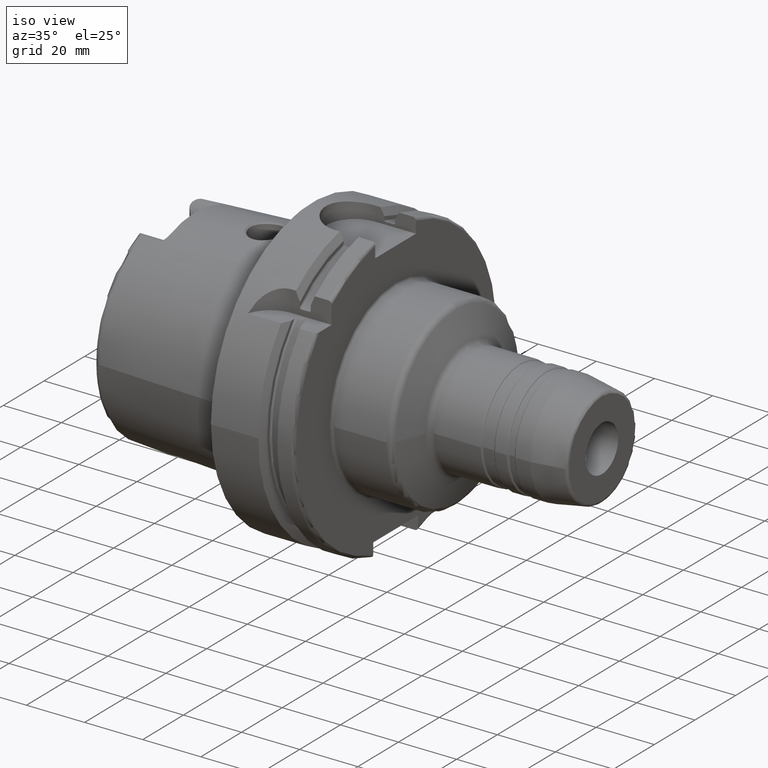
[diagram: clean part render]
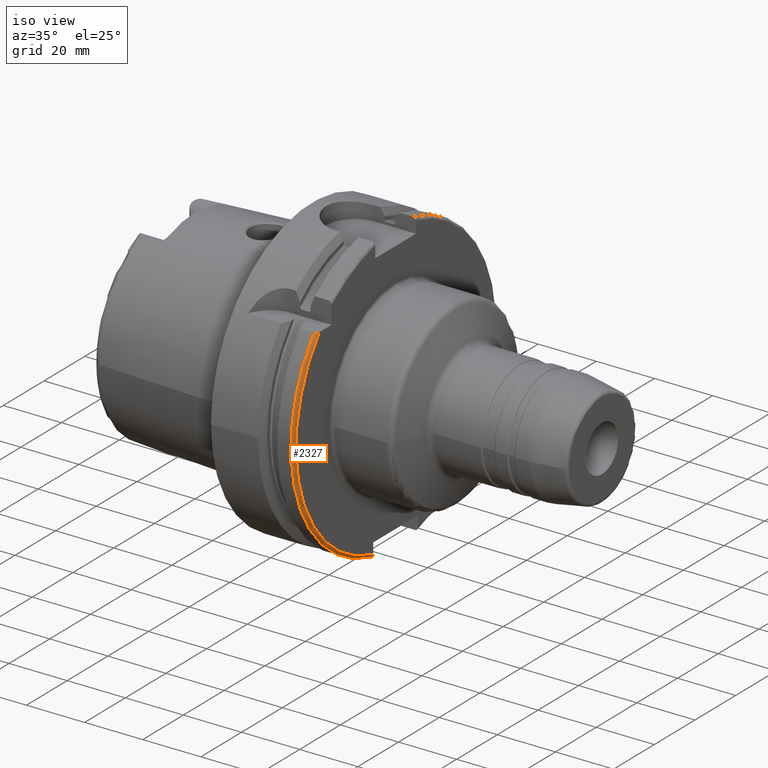
[diagram: same view with one face highlighted and labeled with its STEP entity id]
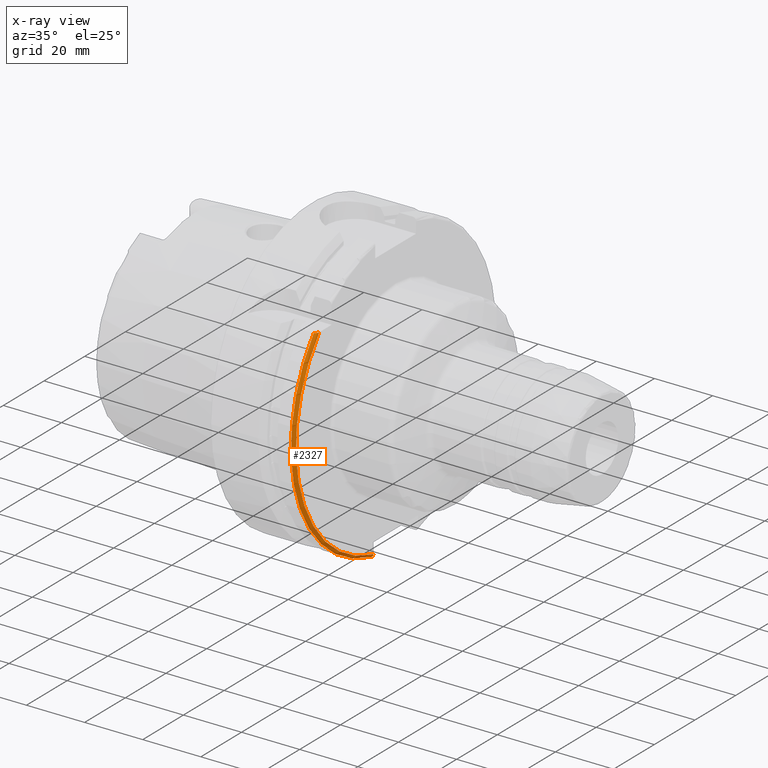
[diagram: x-ray of the same camera — body ghosted, the highlighted face saturated]
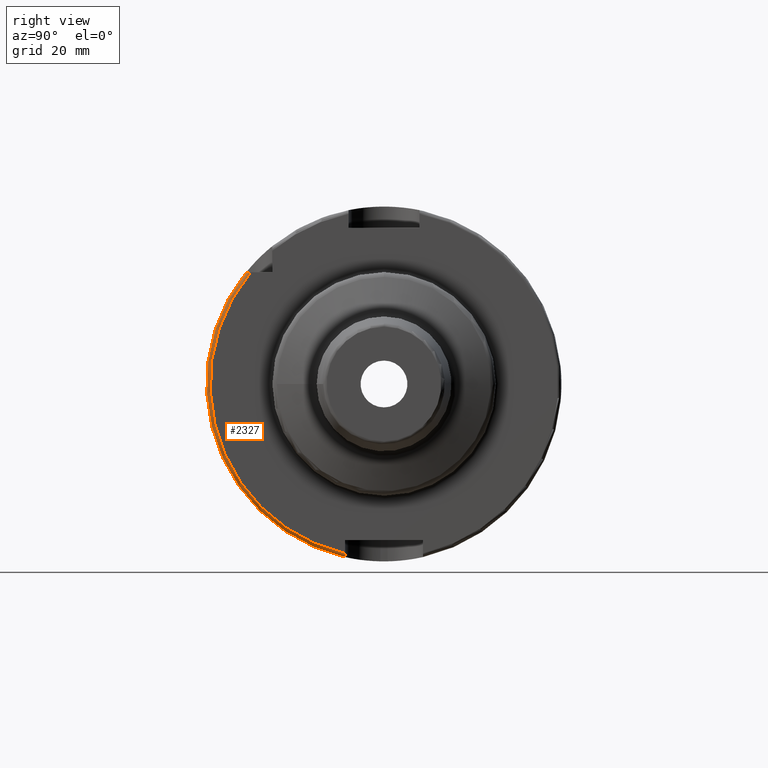
[diagram: same view with one face highlighted and labeled with its STEP entity id]
A machine part, iso view. The second image highlights one B-rep face of the part: STEP entity #2327.
The next image is the same camera in x-ray: the body ghosted, the highlighted face saturated — about 0% of this face is hidden behind the body in this view.
A second angle (right view) of the same face is appended — the face is thin or edge-on in the first view.
In plain terms, the highlighted toroidal blend (fillet) surface has major radius 49 mm and minor (blend) radius 1 mm.
Its self-contained STEP definition (entity closure, byte-faithful):
#64=B_SPLINE_CURVE_WITH_KNOTS('',3,(#4568,#4569,#4570,#4571,#4572,#4573,
#4574,#4575,#4576,#4577),.UNSPECIFIED.,.F.,.F.,(4,2,2,2,4),(-0.170825962094808,
-0.118543630596578,-0.0729156509442915,-0.0340271521483428,0.),
 .UNSPECIFIED.);
#74=B_SPLINE_CURVE_WITH_KNOTS('',3,(#4765,#4766,#4767,#4768,#4769,#4770,
#4771,#4772,#4773,#4774),.UNSPECIFIED.,.F.,.F.,(4,2,2,2,4),(0.,0.0367272650241839,
0.0739245844742874,0.111709319934006,0.150007250748607),.UNSPECIFIED.);
#180=TOROIDAL_SURFACE('',#2610,49.,1.);
#271=FACE_OUTER_BOUND('',#412,.T.);
#412=EDGE_LOOP('',(#1930,#1931,#1932,#1933));
#758=CIRCLE('',#2495,49.);
#818=CIRCLE('',#2611,50.);
#927=VERTEX_POINT('',#3628);
#928=VERTEX_POINT('',#3630);
#1033=VERTEX_POINT('',#4566);
#1065=VERTEX_POINT('',#4764);
#1189=EDGE_CURVE('',#927,#928,#758,.T.);
#1326=EDGE_CURVE('',#927,#1033,#64,.T.);
#1372=EDGE_CURVE('',#1065,#928,#74,.T.);
#1387=EDGE_CURVE('',#1033,#1065,#818,.T.);
#1930=ORIENTED_EDGE('',*,*,#1326,.T.);
#1931=ORIENTED_EDGE('',*,*,#1387,.T.);
#1932=ORIENTED_EDGE('',*,*,#1372,.T.);
#1933=ORIENTED_EDGE('',*,*,#1189,.F.);
#2327=ADVANCED_FACE('',(#271),#180,.T.);
#2495=AXIS2_PLACEMENT_3D('',#3631,#2914,#2915);
#2610=AXIS2_PLACEMENT_3D('',#4833,#3215,#3216);
#2611=AXIS2_PLACEMENT_3D('',#4834,#3217,#3218);
#2914=DIRECTION('center_axis',(1.,0.,0.));
#2915=DIRECTION('ref_axis',(0.,0.,-1.));
#3215=DIRECTION('center_axis',(1.,0.,0.));
#3216=DIRECTION('ref_axis',(0.,0.,-1.));
#3217=DIRECTION('center_axis',(1.,0.,0.));
#3218=DIRECTION('ref_axis',(0.,0.,-1.));
#3628=CARTESIAN_POINT('',(29.,-37.5333185316726,31.5));
#3630=CARTESIAN_POINT('',(29.,-11.,-47.7493455452533));
#3631=CARTESIAN_POINT('Origin',(29.,0.,0.));
#4566=CARTESIAN_POINT('',(28.,-38.8297566307078,31.5));
#4568=CARTESIAN_POINT('Ctrl Pts',(29.,-37.5333185316726,31.5));
#4569=CARTESIAN_POINT('Ctrl Pts',(29.,-37.7075929700001,31.5));
#4570=CARTESIAN_POINT('Ctrl Pts',(28.9664820083304,-37.9140187901503,31.5));
#4571=CARTESIAN_POINT('Ctrl Pts',(28.8572425149189,-38.2215616508799,31.5));
#4572=CARTESIAN_POINT('Ctrl Pts',(28.7693181429129,-38.3814988424326,31.5));
#4573=CARTESIAN_POINT('Ctrl Pts',(28.5860354601279,-38.5954486383736,31.5));
#4574=CARTESIAN_POINT('Ctrl Pts',(28.4650491410143,-38.6932205975694,31.5));
#4575=CARTESIAN_POINT('Ctrl Pts',(28.2458099245109,-38.7981421072727,31.5));
#4576=CARTESIAN_POINT('Ctrl Pts',(28.1134238404945,-38.8297566307078,31.5));
#4577=CARTESIAN_POINT('Ctrl Pts',(28.,-38.8297566307078,31.5));
#4764=CARTESIAN_POINT('',(28.,-11.,-48.7749935930288));
#4765=CARTESIAN_POINT('Ctrl Pts',(28.,-11.,-48.7749935930288));
#4766=CARTESIAN_POINT('Ctrl Pts',(28.1224242167473,-11.,-48.7749935930288));
#4767=CARTESIAN_POINT('Ctrl Pts',(28.2664089378791,-11.,-48.7458273107991));
#4768=CARTESIAN_POINT('Ctrl Pts',(28.4935811491945,-11.,-48.6503638235243));
#4769=CARTESIAN_POINT('Ctrl Pts',(28.6165742030546,-11.,-48.5666323605576));
#4770=CARTESIAN_POINT('Ctrl Pts',(28.7919641478885,-11.,-48.3885636593617));
#4771=CARTESIAN_POINT('Ctrl Pts',(28.8748308300651,-11.,-48.2621670900838));
#4772=CARTESIAN_POINT('Ctrl Pts',(28.9706639476237,-11.,-48.0273618911654));
#4773=CARTESIAN_POINT('Ctrl Pts',(29.,-11.,-47.8770053146353));
#4774=CARTESIAN_POINT('Ctrl Pts',(29.,-11.,-47.7493455452533));
#4833=CARTESIAN_POINT('Origin',(28.,0.,0.));
#4834=CARTESIAN_POINT('Origin',(28.,0.,0.));